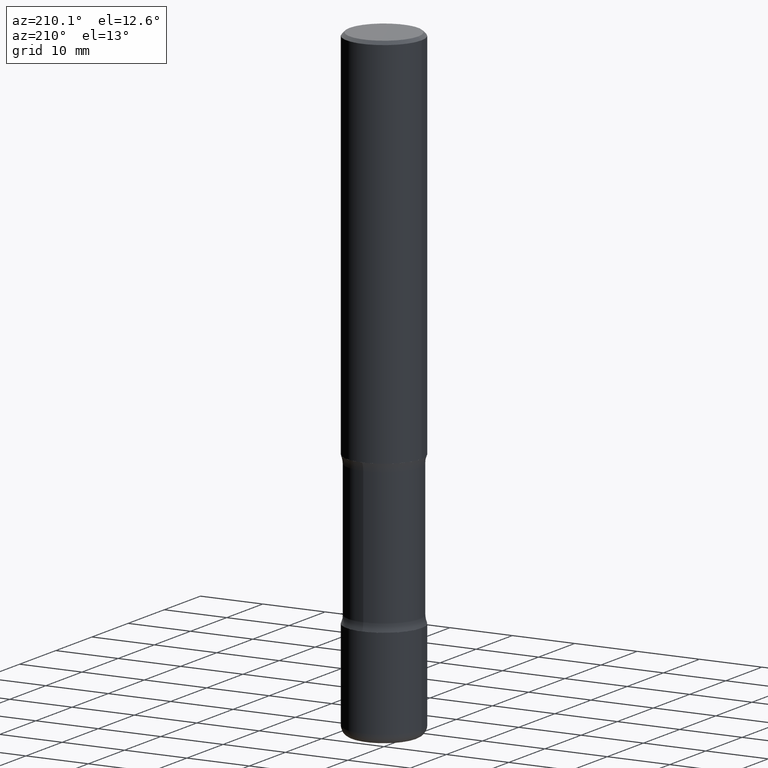
[diagram: clean part render]
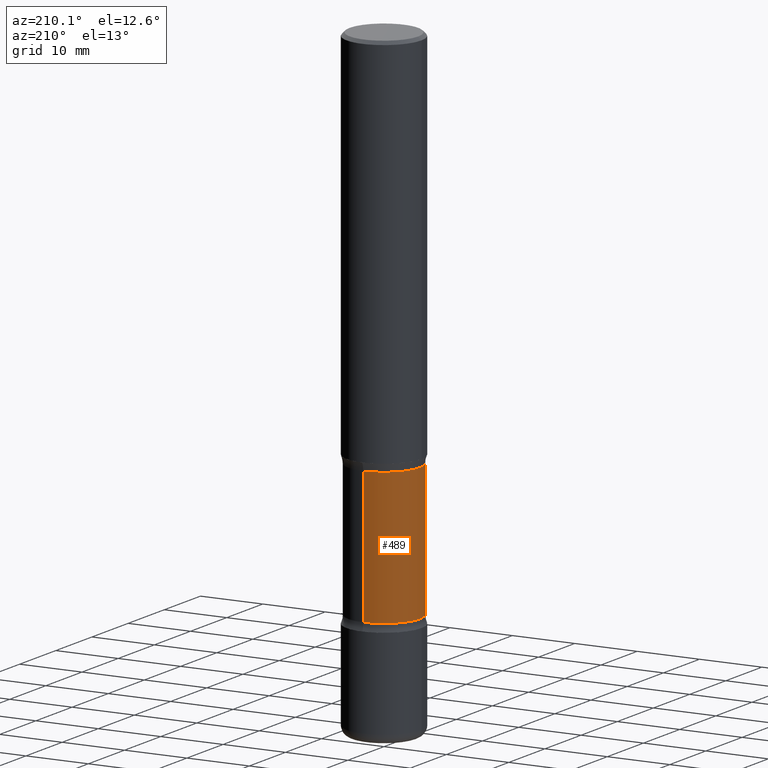
[diagram: same view with one face highlighted and labeled with its STEP entity id]
A machine part, auxiliary view. The second image highlights one B-rep face of the part: STEP entity #489.
In plain terms, the highlighted cylindrical surface (partial cylindrical patch) has radius 5.7391 mm, axis along (0, -0, -1).
Its self-contained STEP definition (entity closure, byte-faithful):
#24 = CARTESIAN_POINT ( 'NONE',  ( 1.577800417023270691E-15, 0.2259499999999915743, -2.411772547846566805 ) ) ;
#25 = CARTESIAN_POINT ( 'NONE',  ( -1.585289574834976853E-15, -0.2259500000000114195, -3.257527452153434311 ) ) ;
#26 = AXIS2_PLACEMENT_3D ( 'NONE', #325, #106, #155 ) ;
#45 = DIRECTION ( 'NONE',  ( 2.573332013070723283E-29, -3.308373949061201717E-15, -1.000000000000000000 ) ) ;
#64 = CARTESIAN_POINT ( 'NONE',  ( -1.550129522596380948E-15, -0.2259500000000137232, -3.936999999999999389 ) ) ;
#73 = ORIENTED_EDGE ( 'NONE', *, *, #335, .F. ) ;
#78 = CARTESIAN_POINT ( 'NONE',  ( 1.577800417023309542E-15, 0.2259499999999864672, -3.937000000000000721 ) ) ;
#106 = DIRECTION ( 'NONE',  ( 2.573332013070723283E-29, -3.308373949061201717E-15, -1.000000000000000000 ) ) ;
#114 = VECTOR ( 'NONE', #239, 39.37007874015748143 ) ;
#141 = AXIS2_PLACEMENT_3D ( 'NONE', #301, #480, #246 ) ;
#155 = DIRECTION ( 'NONE',  ( 6.982962677686266711E-15, 1.000000000000000000, -2.418099573944910436E-15 ) ) ;
#178 = VECTOR ( 'NONE', #45, 39.37007874015748143 ) ;
#192 = EDGE_CURVE ( 'NONE', #406, #324, #449, .T. ) ;
#222 = VERTEX_POINT ( 'NONE', #236 ) ;
#236 = CARTESIAN_POINT ( 'NONE',  ( 1.577800417023291793E-15, 0.2259499999999886877, -3.257527452153435199 ) ) ;
#239 = DIRECTION ( 'NONE',  ( 2.573332013070723283E-29, -3.308373949061201717E-15, -1.000000000000000000 ) ) ;
#246 = DIRECTION ( 'NONE',  ( 6.982962677686265922E-15, 1.000000000000000000, -2.418099573944910042E-15 ) ) ;
#250 = CYLINDRICAL_SURFACE ( 'NONE', #141, 0.2259500000000000952 ) ;
#254 = ORIENTED_EDGE ( 'NONE', *, *, #306, .F. ) ;
#268 = CIRCLE ( 'NONE', #26, 0.2259500000000000397 ) ;
#277 = DIRECTION ( 'NONE',  ( 6.982962677686265922E-15, 1.000000000000000000, -3.627149360917363879E-15 ) ) ;
#288 = FACE_OUTER_BOUND ( 'NONE', #507, .T. ) ;
#301 = CARTESIAN_POINT ( 'NONE',  ( 9.708351723968114409E-29, -1.363062268620181866E-14, -3.937000000000000277 ) ) ;
#306 = EDGE_CURVE ( 'NONE', #406, #310, #331, .T. ) ;
#310 = VERTEX_POINT ( 'NONE', #25 ) ;
#324 = VERTEX_POINT ( 'NONE', #24 ) ;
#325 = CARTESIAN_POINT ( 'NONE',  ( 7.959843264591818864E-29, -1.138267340980399904E-14, -3.257527452153434755 ) ) ;
#331 = LINE ( 'NONE', #64, #114 ) ;
#335 = EDGE_CURVE ( 'NONE', #310, #222, #268, .T. ) ;
#365 = DIRECTION ( 'NONE',  ( 2.573332013070723283E-29, -3.308373949061201717E-15, -1.000000000000000000 ) ) ;
#392 = ORIENTED_EDGE ( 'NONE', *, *, #431, .T. ) ;
#406 = VERTEX_POINT ( 'NONE', #419 ) ;
#412 = LINE ( 'NONE', #78, #178 ) ;
#419 = CARTESIAN_POINT ( 'NONE',  ( -1.585289574835001111E-15, -0.2259500000000087272, -2.411772547846565029 ) ) ;
#431 = EDGE_CURVE ( 'NONE', #324, #222, #412, .T. ) ;
#449 = CIRCLE ( 'NONE', #541, 0.2259500000000001507 ) ;
#480 = DIRECTION ( 'NONE',  ( 2.573332013070723283E-29, -3.308373949061201717E-15, -1.000000000000000000 ) ) ;
#489 = ADVANCED_FACE ( 'NONE', ( #288 ), #250, .T. ) ;
#493 = CARTESIAN_POINT ( 'NONE',  ( 5.783435094127386859E-29, -8.584599917104405503E-15, -2.411772547846565917 ) ) ;
#507 = EDGE_LOOP ( 'NONE', ( #254, #514, #392, #73 ) ) ;
#514 = ORIENTED_EDGE ( 'NONE', *, *, #192, .T. ) ;
#541 = AXIS2_PLACEMENT_3D ( 'NONE', #493, #365, #277 ) ;